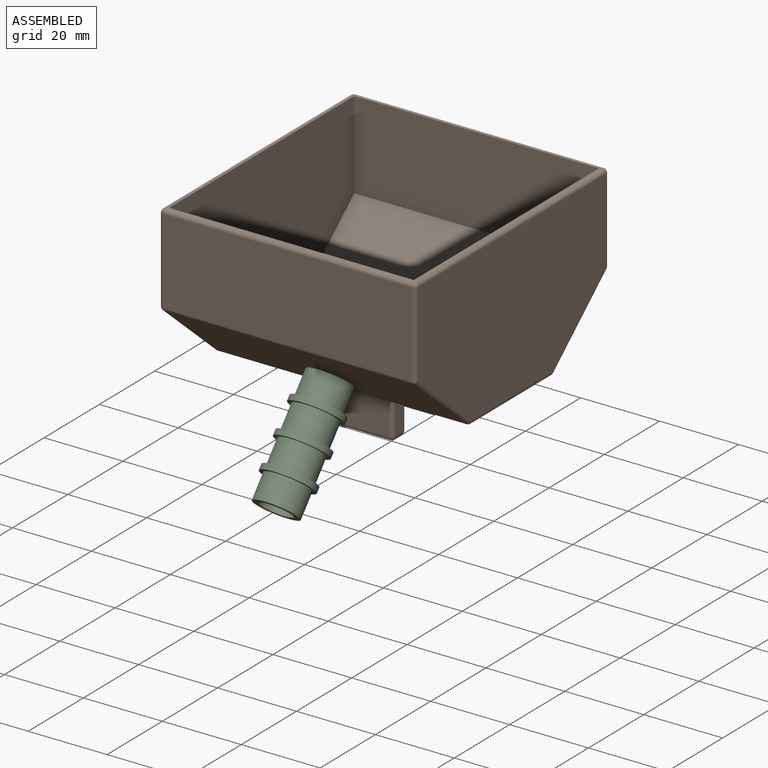
[diagram: assembled view]
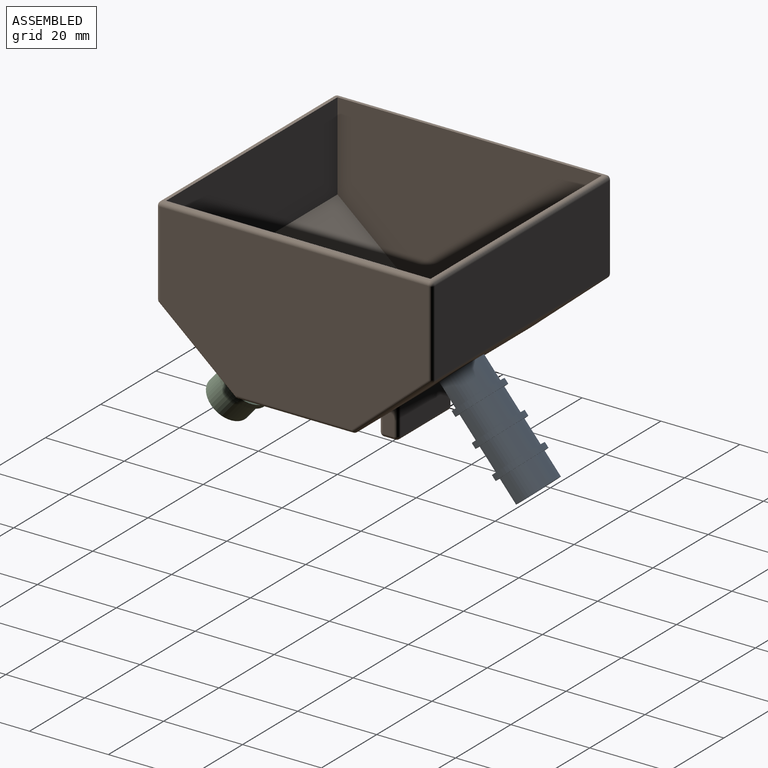
[diagram: assembled view, second angle]
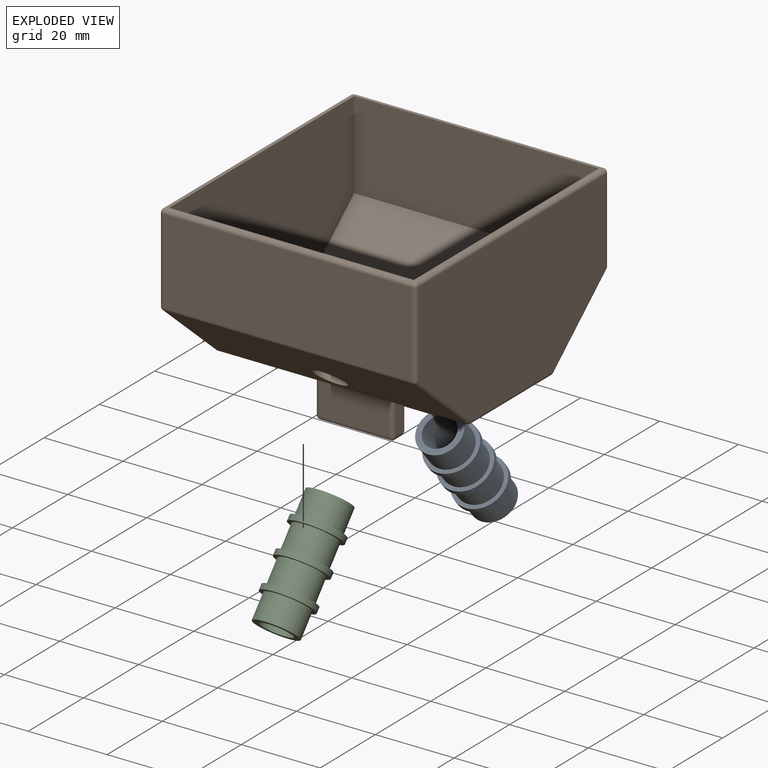
[diagram: exploded view]
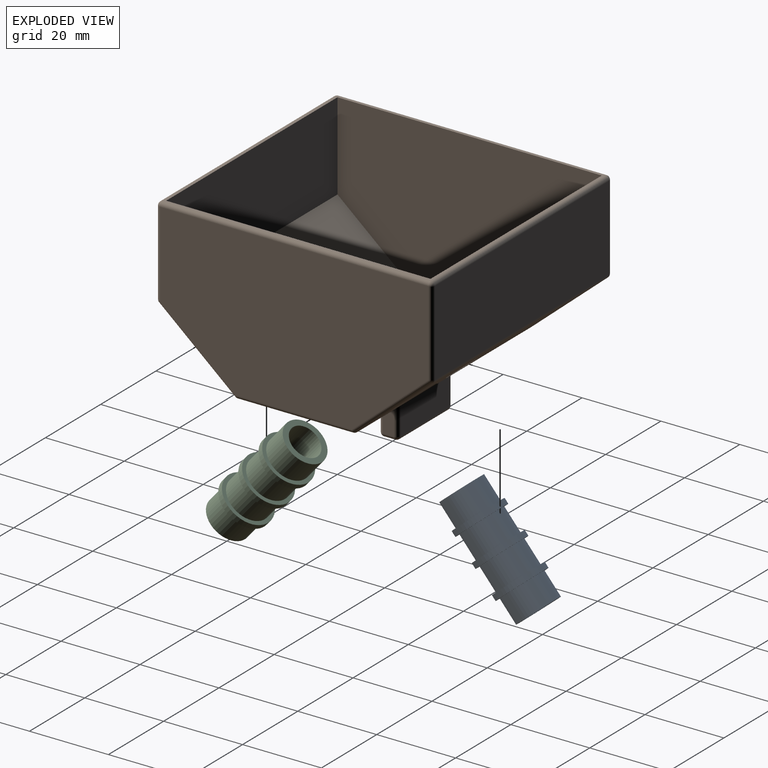
[diagram: exploded view, second angle]
ASSEMBLY  parts=3 mates=4
PART A: 16 faces, bbox 13x13x30 mm
  f0: cylinder r=5.5mm len=11mm, axis (0,0,-1), area 222.1mm2, adj f1,f15
  f1: plane 11x11mm, normal (0,0,1), area 44.8mm2, adj f0,f2
  f2: cylinder r=4mm len=30mm, axis (0,0,-1), area 754mm2, adj f1,f3
  f3: plane 11x11mm, normal (0,0,-1), area 44.8mm2, adj f2,f4
  f4: cylinder r=5.5mm len=11mm, axis (0,0,-1), area 222.1mm2, adj f3,f5
  f5: plane 13x13mm, normal (0,0,-1), area 37.7mm2, adj f4,f6
  f6: cylinder r=6.5mm len=13mm, axis (0,0,-1), area 58.5mm2, adj f5,f7
  f7: plane 13x13mm, normal (0,0,1), area 37.7mm2, adj f6,f8
  f8: cylinder r=5.5mm len=11mm, axis (0,0,-1), area 222.1mm2, adj f7,f9
  f9: plane 13x13mm, normal (0,0,-1), area 37.7mm2, adj f8,f10
  f10: cylinder r=6.5mm len=13mm, axis (0,0,-1), area 58.5mm2, adj f9,f11
  f11: plane 13x13mm, normal (0,0,1), area 37.7mm2, adj f10,f12
  f12: cylinder r=5.5mm len=11mm, axis (0,0,-1), area 222.1mm2, adj f11,f13
  f13: plane 13x13mm, normal (0,0,-1), area 37.7mm2, adj f12,f14
  f14: cylinder r=6.5mm len=13mm, axis (0,0,-1), area 58.5mm2, adj f13,f15
  f15: plane 13x13mm, normal (0,0,1), area 37.7mm2, adj f0,f14
PART B: 97 faces, bbox 65x70x52 mm
  f0: plane 63x29.26mm, normal (0,0,-1), area 1553.8mm2, adj f20,f29,f30,f31,f59,f63,f64,f68
  f1: plane 68x63mm, normal (0,0,1), area 130mm2, adj f8,f12,f13,f14,f23,f28,f32,f33
  f2: plane 63x21.48mm, normal (0,-1,0), area 1353.5mm2, adj f33,f38,f41,f44
  f3: plane 63x19.37mm, normal (0,-0.65,-0.76), area 1553.4mm2, adj f30,f39,f40,f44,f45
  f4: plane 63x19.37mm, normal (0,0.65,-0.76), area 1553.4mm2, adj f15,f19,f20,f21,f46
  f5: plane 63x21.48mm, normal (0,1,0), area 1353.5mm2, adj f15,f18,f22,f23
  f6: plane 68x38mm, normal (1,0,0), area 2264.1mm2, adj f18,f19,f28,f29,f38,f39
  f7: plane 68x38mm, normal (-1,0,0), area 2264.1mm2, adj f21,f22,f31,f32,f40,f41
  f8: plane 62x22.25mm, normal (0,1,0), area 1379.7mm2, adj f1,f9,f13,f14
  f9: plane 62x19.05mm, normal (0,0.65,0.76), area 1502.2mm2, adj f8,f10,f13,f14,f45
  f10: plane 62x28.89mm, normal (0,0,1), area 1791.5mm2, adj f9,f11,f13,f14
  f11: plane 62x19.05mm, normal (0,-0.65,0.76), area 1502.2mm2, adj f10,f12,f13,f14,f46
  f12: plane 62x22.25mm, normal (0,-1,0), area 1379.7mm2, adj f1,f11,f13,f14
  f13: plane 67x38.5mm, normal (-1,0,0), area 2269.9mm2, adj f1,f8,f9,f10,f11,f12
  f14: plane 67x38.5mm, normal (1,0,0), area 2269.9mm2, adj f1,f8,f9,f10,f11,f12
  f15: cylinder r=1mm len=63mm, axis (-1,0,0), area 54.5mm2, adj f4,f5,f16,f17
  f16: sphere r=1mm, area 0.9mm2, adj f15,f18,f19
  f17: sphere r=1mm, area 0.9mm2, adj f15,f21,f22
  f18: cylinder r=1mm len=21.48mm, axis (0,0,-1), area 33.7mm2, adj f5,f6,f16,f24
  f19: cylinder r=1mm len=20.02mm, axis (0,-0.76,-0.65), area 40mm2, adj f4,f6,f16,f25
  f20: cylinder r=1mm len=63mm, axis (-1,0,0), area 44.5mm2, adj f0,f4,f25,f26
  f21: cylinder r=1mm len=20.02mm, axis (0,0.76,0.65), area 40mm2, adj f4,f7,f17,f26
  f22: cylinder r=1mm len=21.48mm, axis (0,0,1), area 33.7mm2, adj f5,f7,f17,f27
  f23: cylinder r=1mm len=63mm, axis (-1,0,0), area 99mm2, adj f1,f5,f24,f27
  f24: sphere r=1mm, area 1.6mm2, adj f18,f23,f28
  f25: sphere r=1mm, area 0.7mm2, adj f19,f20,f29
  f26: sphere r=1mm, area 0.7mm2, adj f20,f21,f31
  f27: sphere r=1mm, area 1.6mm2, adj f22,f23,f32
  f28: cylinder r=1mm len=68mm, axis (0,1,0), area 106.8mm2, adj f1,f6,f24,f34
  f29: cylinder r=1mm len=29.26mm, axis (0,-1,0), area 46mm2, adj f0,f6,f25,f35
  f30: cylinder r=1mm len=63mm, axis (-1,0,0), area 44.5mm2, adj f0,f3,f35,f36
  f31: cylinder r=1mm len=29.26mm, axis (0,1,0), area 46mm2, adj f0,f7,f26,f36
  f32: cylinder r=1mm len=68mm, axis (0,-1,0), area 106.8mm2, adj f1,f7,f27,f37
  f33: cylinder r=1mm len=63mm, axis (-1,0,0), area 99mm2, adj f1,f2,f34,f37
  f34: sphere r=1mm, area 1.6mm2, adj f28,f33,f38
  f35: sphere r=1mm, area 0.7mm2, adj f29,f30,f39
  f36: sphere r=1mm, area 0.7mm2, adj f30,f31,f40
  f37: sphere r=1mm, area 1.6mm2, adj f32,f33,f41
  f38: cylinder r=1mm len=21.48mm, axis (0,0,1), area 33.7mm2, adj f2,f6,f34,f42
  f39: cylinder r=1mm len=20.02mm, axis (0,-0.76,0.65), area 40mm2, adj f3,f6,f35,f42
  f40: cylinder r=1mm len=20.02mm, axis (0,0.76,-0.65), area 40mm2, adj f3,f7,f36,f43
  f41: cylinder r=1mm len=21.48mm, axis (0,0,-1), area 33.7mm2, adj f2,f7,f37,f43
  f42: sphere r=1mm, area 0.9mm2, adj f38,f39,f44
  f43: sphere r=1mm, area 0.9mm2, adj f40,f41,f44
  f44: cylinder r=1mm len=63mm, axis (-1,0,0), area 54.5mm2, adj f2,f3,f42,f43
  f45: cylinder r=4mm len=8mm, axis (0,-0.65,-0.76), area 37.7mm2, adj f3,f9
  f46: cylinder r=4mm len=8mm, axis (0,0.65,-0.76), area 37.7mm2, adj f4,f11
  f47: plane 17.73x10mm, normal (0,-1,0), area 177.3mm2, adj f82,f91,f92,f96
  f48: plane 10x2.83mm, normal (-1,0,0), area 28.3mm2, adj f77,f81,f82,f83
  f49: plane 17.73x10mm, normal (0,1,0), area 177.3mm2, adj f77,f80,f84,f85
  f50: plane 10x2.83mm, normal (1,0,0), area 28.3mm2, adj f85,f90,f93,f96
  f51: plane 17.73x2.83mm, normal (0,0,-1), area 50.1mm2, adj f80,f81,f90,f91
  f52: plane 10x2.83mm, normal (-1,0,0), area 28.3mm2, adj f65,f70,f73,f76
  f53: plane 17.73x10mm, normal (0,1,0), area 177.3mm2, adj f62,f71,f72,f76
  f54: plane 10x2.83mm, normal (1,0,0), area 28.3mm2, adj f57,f61,f62,f63
  f55: plane 17.73x10mm, normal (0,-1,0), area 177.3mm2, adj f57,f60,f64,f65
  f56: plane 17.73x2.83mm, normal (0,0,-1), area 50.1mm2, adj f60,f61,f70,f71
  f57: cylinder r=1mm len=10mm, axis (0,0,1), area 15.7mm2, adj f54,f55,f58,f59
  f58: sphere r=1mm, area 1.6mm2, adj f57,f60,f61
  f59: torus R=2mm, axis (0,0,-1), area 3.4mm2, adj f0,f57,f63,f64
  f60: cylinder r=1mm len=17.73mm, axis (1,0,0), area 27.9mm2, adj f55,f56,f58,f66
  f61: cylinder r=1mm len=2.83mm, axis (0,1,0), area 4.4mm2, adj f54,f56,f58,f67
  f62: cylinder r=1mm len=10mm, axis (0,0,-1), area 15.7mm2, adj f53,f54,f67,f68
  f63: cylinder r=1mm len=2.83mm, axis (0,-1,0), area 4.4mm2, adj f0,f54,f59,f68
  f64: cylinder r=1mm len=17.73mm, axis (-1,0,0), area 27.9mm2, adj f0,f55,f59,f69
  f65: cylinder r=1mm len=10mm, axis (0,0,-1), area 15.7mm2, adj f52,f55,f66,f69
  f66: sphere r=1mm, area 1.6mm2, adj f60,f65,f70
  f67: sphere r=1mm, area 1.6mm2, adj f61,f62,f71
  f68: torus R=2mm, axis (0,0,-1), area 3.4mm2, adj f0,f62,f63,f72
  f69: torus R=2mm, axis (0,0,-1), area 3.4mm2, adj f0,f64,f65,f73
  f70: cylinder r=1mm len=2.83mm, axis (0,-1,0), area 4.4mm2, adj f52,f56,f66,f74
  f71: cylinder r=1mm len=17.73mm, axis (-1,0,0), area 27.9mm2, adj f53,f56,f67,f74
  f72: cylinder r=1mm len=17.73mm, axis (1,0,0), area 27.9mm2, adj f0,f53,f68,f75
  f73: cylinder r=1mm len=2.83mm, axis (0,1,0), area 4.4mm2, adj f0,f52,f69,f75
  f74: sphere r=1mm, area 1.6mm2, adj f70,f71,f76
  f75: torus R=2mm, axis (0,0,-1), area 3.4mm2, adj f0,f72,f73,f76
  f76: cylinder r=1mm len=10mm, axis (0,0,1), area 15.7mm2, adj f52,f53,f74,f75
  f77: cylinder r=1mm len=10mm, axis (0,0,-1), area 15.7mm2, adj f48,f49,f78,f79
  f78: sphere r=1mm, area 1.6mm2, adj f77,f80,f81
  f79: torus R=2mm, axis (0,0,-1), area 3.4mm2, adj f0,f77,f83,f84
  f80: cylinder r=1mm len=17.73mm, axis (-1,0,0), area 27.9mm2, adj f49,f51,f78,f86
  f81: cylinder r=1mm len=2.83mm, axis (0,-1,0), area 4.4mm2, adj f48,f51,f78,f87
  f82: cylinder r=1mm len=10mm, axis (0,0,1), area 15.7mm2, adj f47,f48,f87,f88
  f83: cylinder r=1mm len=2.83mm, axis (0,1,0), area 4.4mm2, adj f0,f48,f79,f88
  f84: cylinder r=1mm len=17.73mm, axis (1,0,0), area 27.9mm2, adj f0,f49,f79,f89
  f85: cylinder r=1mm len=10mm, axis (0,0,1), area 15.7mm2, adj f49,f50,f86,f89
  f86: sphere r=1mm, area 1.6mm2, adj f80,f85,f90
  f87: sphere r=1mm, area 1.6mm2, adj f81,f82,f91
  f88: torus R=2mm, axis (0,0,-1), area 3.4mm2, adj f0,f82,f83,f92
  f89: torus R=2mm, axis (0,0,-1), area 3.4mm2, adj f0,f84,f85,f93
  f90: cylinder r=1mm len=2.83mm, axis (0,1,0), area 4.4mm2, adj f50,f51,f86,f94
  f91: cylinder r=1mm len=17.73mm, axis (1,0,0), area 27.9mm2, adj f47,f51,f87,f94
  f92: cylinder r=1mm len=17.73mm, axis (-1,0,0), area 27.9mm2, adj f0,f47,f88,f95
  f93: cylinder r=1mm len=2.83mm, axis (0,-1,0), area 4.4mm2, adj f0,f50,f89,f95
  f94: sphere r=1mm, area 1.6mm2, adj f90,f91,f96
  f95: torus R=2mm, axis (0,0,-1), area 3.4mm2, adj f0,f92,f93,f96
  f96: cylinder r=1mm len=10mm, axis (0,0,-1), area 15.7mm2, adj f47,f50,f94,f95
PART C: same geometry as A
PLACE A rot(axis=(0.11,0.34,-0.93),148.1deg) t=(0.4,30.59,-28.69)mm
PLACE B t=(-32.31,-27.21,4.05)mm fixed
PLACE C rot(axis=(0,-0.35,-0.94),180deg) t=(0.4,-30.63,-28.69)mm
MATE cylindrical A.f0 <-> B.f46  axis (0,-0.65,0.76) through (0.4,19.82,-16.06)mm
MATE revolute B.f45 <-> C.f0  axis (0,-0.65,-0.76) through (0.4,-19.87,-16.06)mm
MATE planar C.f0 <-> B.f3  axis (0,0.65,0.76) through (0.4,-19.87,-16.06)mm
MATE planar B.f4 <-> A.f0  axis (0,0.65,-0.76) through (0.18,25.11,-11.56)mm
